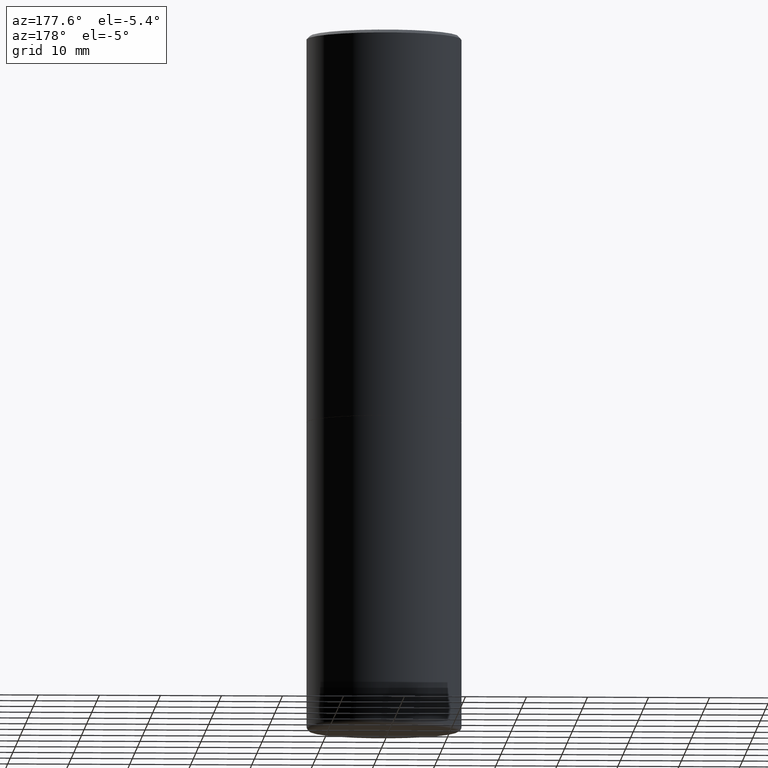
[diagram: clean part render]
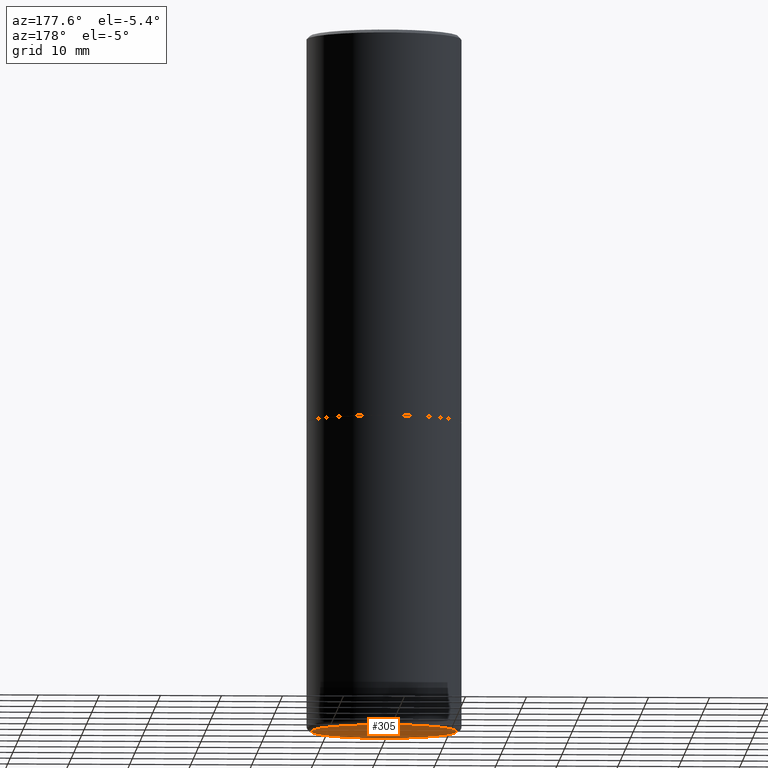
[diagram: same view with one face highlighted and labeled with its STEP entity id]
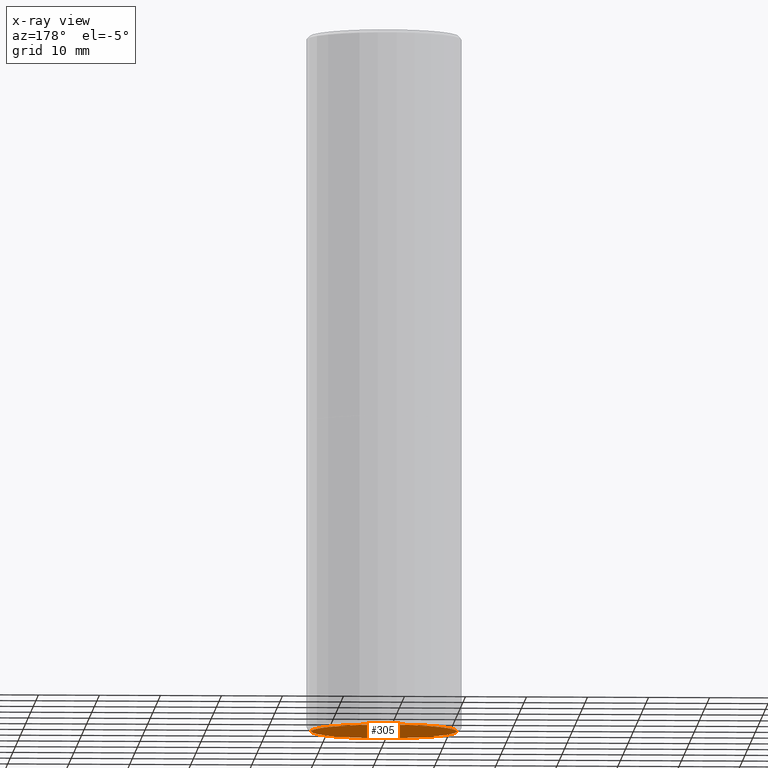
[diagram: x-ray of the same camera — body ghosted, the highlighted face saturated]
A machine part, auxiliary view. The second image highlights one B-rep face of the part: STEP entity #305.
The next image is the same camera in x-ray: the body ghosted, the highlighted face saturated — about 0% of this face is hidden behind the body in this view.
In plain terms, the highlighted planar face has unit normal (0, -0, -1).
Its self-contained STEP definition (entity closure, byte-faithful):
#9 = DIRECTION ( 'NONE',  ( 1.000000000000000000, -6.982962677686270655E-15, 0.000000000000000000 ) ) ;
#17 = ORIENTED_EDGE ( 'NONE', *, *, #292, .F. ) ;
#20 = CARTESIAN_POINT ( 'NONE',  ( 1.100460962783311244E-28, -1.571166602479415374E-14, -4.499999999999999112 ) ) ;
#32 = CARTESIAN_POINT ( 'NONE',  ( 1.465753586672304986E-28, -1.048046773905407619E-14, -4.499999999999999112 ) ) ;
#61 = FACE_OUTER_BOUND ( 'NONE', #67, .T. ) ;
#65 = CARTESIAN_POINT ( 'NONE',  ( 0.4700000000000000289, -1.899365848330670036E-14, -4.499999999999999112 ) ) ;
#67 = EDGE_LOOP ( 'NONE', ( #96, #17 ) ) ;
#96 = ORIENTED_EDGE ( 'NONE', *, *, #382, .F. ) ;
#102 = CIRCLE ( 'NONE', #115, 0.4700000000000000289 ) ;
#115 = AXIS2_PLACEMENT_3D ( 'NONE', #181, #318, #321 ) ;
#116 = AXIS2_PLACEMENT_3D ( 'NONE', #20, #136, #9 ) ;
#136 = DIRECTION ( 'NONE',  ( -2.445468806185136597E-29, 3.491481338843145583E-15, 1.000000000000000000 ) ) ;
#181 = CARTESIAN_POINT ( 'NONE',  ( 1.100460962783311244E-28, -1.571166602479415374E-14, -4.499999999999999112 ) ) ;
#191 = VERTEX_POINT ( 'NONE', #209 ) ;
#209 = CARTESIAN_POINT ( 'NONE',  ( -0.4700000000000000289, -1.221316153627502519E-14, -4.499999999999999112 ) ) ;
#229 = VERTEX_POINT ( 'NONE', #65 ) ;
#256 = AXIS2_PLACEMENT_3D ( 'NONE', #32, #288, #388 ) ;
#288 = DIRECTION ( 'NONE',  ( 2.438088387897960049E-29, -3.491481338843145188E-15, -1.000000000000000000 ) ) ;
#292 = EDGE_CURVE ( 'NONE', #191, #229, #102, .T. ) ;
#305 = ADVANCED_FACE ( 'NONE', ( #61 ), #358, .T. ) ;
#318 = DIRECTION ( 'NONE',  ( -2.445468806185136597E-29, 3.491481338843145583E-15, 1.000000000000000000 ) ) ;
#321 = DIRECTION ( 'NONE',  ( 1.000000000000000000, -6.982962677686270655E-15, 0.000000000000000000 ) ) ;
#356 = CIRCLE ( 'NONE', #116, 0.4700000000000000289 ) ;
#358 = PLANE ( 'NONE',  #256 ) ;
#382 = EDGE_CURVE ( 'NONE', #229, #191, #356, .T. ) ;
#388 = DIRECTION ( 'NONE',  ( -1.000000000000000000, 6.982962677686265922E-15, -4.876176775795935793E-29 ) ) ;